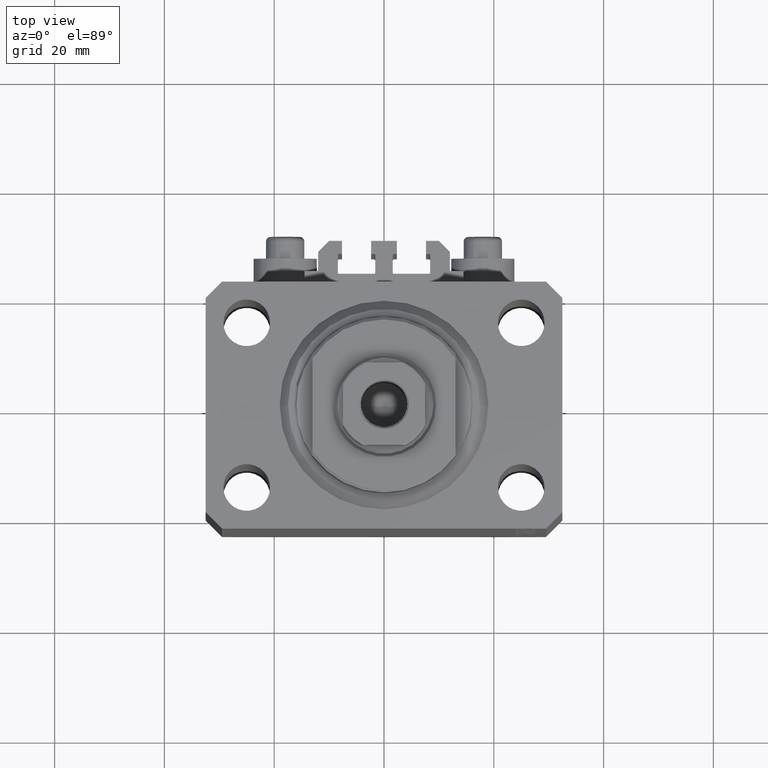
[diagram: clean part render]
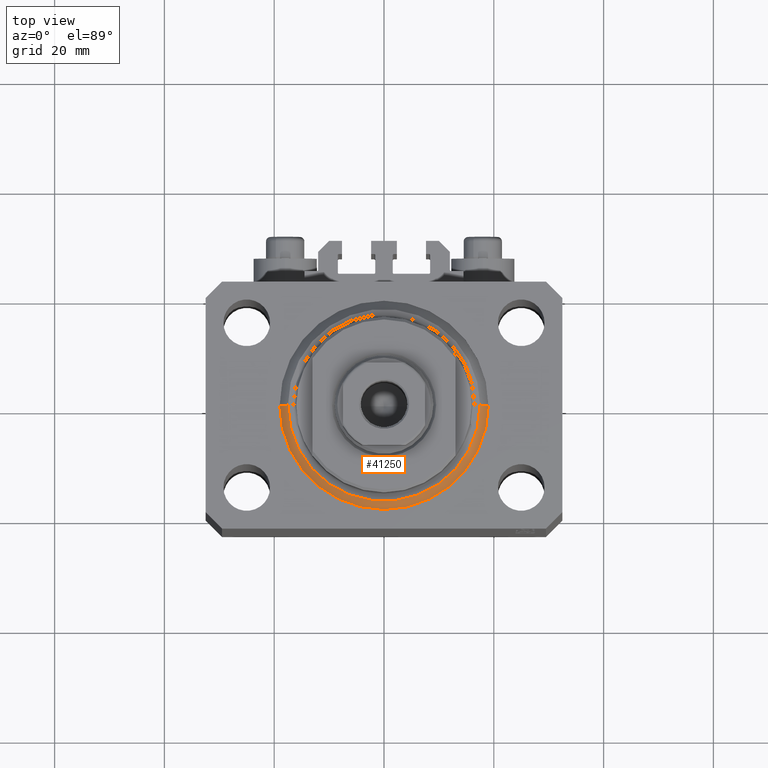
[diagram: same view with one face highlighted and labeled with its STEP entity id]
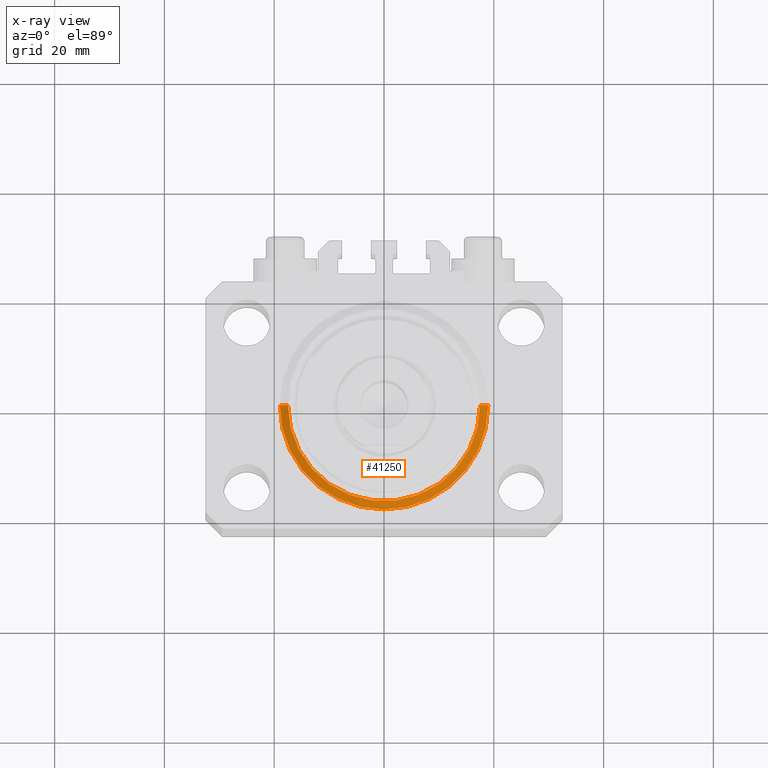
[diagram: x-ray of the same camera — body ghosted, the highlighted face saturated]
A machine part, top view. The second image highlights one B-rep face of the part: STEP entity #41250.
The next image is the same camera in x-ray: the body ghosted, the highlighted face saturated — about 0% of this face is hidden behind the body in this view.
In plain terms, the highlighted conical surface has half-angle 45 deg.
Its self-contained STEP definition (entity closure, byte-faithful):
#45 = EDGE_CURVE ( 'NONE', #7312, #33318, #16155, .T. ) ;
#130 = ORIENTED_EDGE ( 'NONE', *, *, #11580, .F. ) ;
#3725 = ORIENTED_EDGE ( 'NONE', *, *, #16948, .F. ) ;
#6105 = CARTESIAN_POINT ( 'NONE',  ( 19.00000000000000000, 2.326828918379970970E-15, 1.500000000000004885 ) ) ;
#6574 = CARTESIAN_POINT ( 'NONE',  ( -19.00000000000000000, 0.000000000000000000, 1.500000000000004885 ) ) ;
#6938 = CONICAL_SURFACE ( 'NONE', #13039, 19.00000000000000000, 0.7853981633974492782 ) ;
#7312 = VERTEX_POINT ( 'NONE', #26511 ) ;
#7659 = DIRECTION ( 'NONE',  ( -0.7071067811865483499, 8.659560562354943952E-17, 0.7071067811865467956 ) ) ;
#8523 = DIRECTION ( 'NONE',  ( 0.7071067811865483499, 0.000000000000000000, 0.7071067811865467956 ) ) ;
#11580 = EDGE_CURVE ( 'NONE', #42736, #22720, #39977, .T. ) ;
#11860 = DIRECTION ( 'NONE',  ( 1.000000000000000000, 0.000000000000000000, 0.000000000000000000 ) ) ;
#12220 = CARTESIAN_POINT ( 'NONE',  ( 0.000000000000000000, 0.000000000000000000, 0.000000000000000000 ) ) ;
#12863 = CIRCLE ( 'NONE', #34279, 17.49999999999999289 ) ;
#13039 = AXIS2_PLACEMENT_3D ( 'NONE', #37474, #29581, #11860 ) ;
#16155 = LINE ( 'NONE', #31215, #22327 ) ;
#16407 = DIRECTION ( 'NONE',  ( -0.000000000000000000, -0.000000000000000000, 1.000000000000000000 ) ) ;
#16948 = EDGE_CURVE ( 'NONE', #7312, #42736, #12863, .T. ) ;
#22327 = VECTOR ( 'NONE', #8523, 1000.000000000000000 ) ;
#22720 = VERTEX_POINT ( 'NONE', #6574 ) ;
#23621 = EDGE_CURVE ( 'NONE', #22720, #33318, #26401, .T. ) ;
#25063 = EDGE_LOOP ( 'NONE', ( #130, #3725, #44898, #46298 ) ) ;
#26401 = CIRCLE ( 'NONE', #46279, 19.00000000000000000 ) ;
#26511 = CARTESIAN_POINT ( 'NONE',  ( 17.49999999999999289, 0.000000000000000000, 0.000000000000000000 ) ) ;
#29581 = DIRECTION ( 'NONE',  ( -0.000000000000000000, -0.000000000000000000, 1.000000000000000000 ) ) ;
#29908 = CARTESIAN_POINT ( 'NONE',  ( -19.00000000000000000, 2.326828918379970970E-15, 1.500000000000004885 ) ) ;
#31215 = CARTESIAN_POINT ( 'NONE',  ( 19.00000000000000000, 0.000000000000000000, 1.500000000000004885 ) ) ;
#31469 = CARTESIAN_POINT ( 'NONE',  ( 0.000000000000000000, 0.000000000000000000, 1.500000000000004885 ) ) ;
#31763 = CARTESIAN_POINT ( 'NONE',  ( -17.49999999999999289, 2.234980408443919215E-15, 0.000000000000000000 ) ) ;
#33318 = VERTEX_POINT ( 'NONE', #6105 ) ;
#34279 = AXIS2_PLACEMENT_3D ( 'NONE', #12220, #41428, #37832 ) ;
#35300 = DIRECTION ( 'NONE',  ( 1.000000000000000000, 0.000000000000000000, 0.000000000000000000 ) ) ;
#37231 = FACE_OUTER_BOUND ( 'NONE', #25063, .T. ) ;
#37474 = CARTESIAN_POINT ( 'NONE',  ( 0.000000000000000000, 0.000000000000000000, 1.500000000000004885 ) ) ;
#37832 = DIRECTION ( 'NONE',  ( 1.000000000000000000, 0.000000000000000000, 0.000000000000000000 ) ) ;
#39977 = LINE ( 'NONE', #29908, #44039 ) ;
#41250 = ADVANCED_FACE ( 'NONE', ( #37231 ), #6938, .T. ) ;
#41428 = DIRECTION ( 'NONE',  ( -0.000000000000000000, -0.000000000000000000, -1.000000000000000000 ) ) ;
#42736 = VERTEX_POINT ( 'NONE', #31763 ) ;
#44039 = VECTOR ( 'NONE', #7659, 1000.000000000000000 ) ;
#44898 = ORIENTED_EDGE ( 'NONE', *, *, #45, .T. ) ;
#46279 = AXIS2_PLACEMENT_3D ( 'NONE', #31469, #16407, #35300 ) ;
#46298 = ORIENTED_EDGE ( 'NONE', *, *, #23621, .F. ) ;